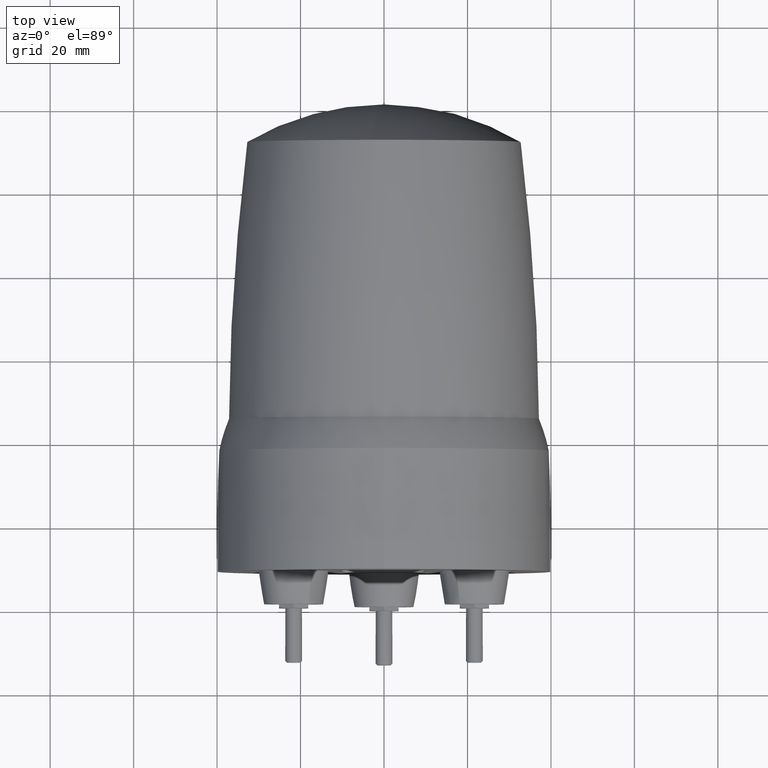
[diagram: clean part render]
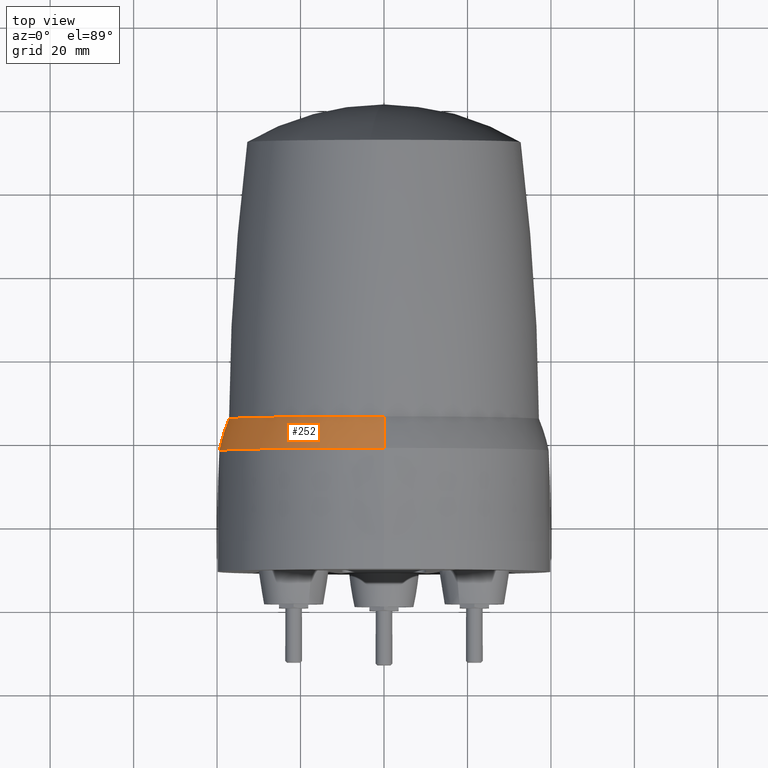
[diagram: same view with one face highlighted and labeled with its STEP entity id]
A machine part, top view. The second image highlights one B-rep face of the part: STEP entity #252.
In plain terms, the highlighted toroidal blend (fillet) surface has major radius 114.457 mm and minor (blend) radius 160 mm.
Its self-contained STEP definition (entity closure, byte-faithful):
#205 = EDGE_CURVE ( 'NONE', #2807, #688, #406, .T. ) ;
#247 = DIRECTION ( 'NONE',  ( 0.000000000000000000, 0.000000000000000000, 1.000000000000000000 ) ) ;
#252 = ADVANCED_FACE ( 'NONE', ( #2320 ), #3754, .T. ) ;
#406 = CIRCLE ( 'NONE', #4030, 160.0000010613769916 ) ;
#637 = EDGE_CURVE ( 'NONE', #1976, #1983, #3647, .T. ) ;
#688 = VERTEX_POINT ( 'NONE', #3676 ) ;
#885 = CARTESIAN_POINT ( 'NONE',  ( 0.000000000000000000, 37.99999999799999273, -39.61598857099999549 ) ) ;
#919 = DIRECTION ( 'NONE',  ( 0.000000000000000000, 0.000000000000000000, -1.000000000000000000 ) ) ;
#1100 = DIRECTION ( 'NONE',  ( 0.000000000000000000, 0.000000000000000000, 1.000000000000000000 ) ) ;
#1235 = ORIENTED_EDGE ( 'NONE', *, *, #2941, .T. ) ;
#1284 = AXIS2_PLACEMENT_3D ( 'NONE', #2097, #3037, #247 ) ;
#1396 = ORIENTED_EDGE ( 'NONE', *, *, #2426, .F. ) ;
#1431 = CARTESIAN_POINT ( 'NONE',  ( 4.875073278221368683E-15, 37.99999999799999273, 39.61598857099999549 ) ) ;
#1497 = DIRECTION ( 'NONE',  ( 1.000000000000000000, -0.000000000000000000, 0.000000000000000000 ) ) ;
#1521 = AXIS2_PLACEMENT_3D ( 'NONE', #2921, #1880, #1100 ) ;
#1665 = CIRCLE ( 'NONE', #1521, 39.61598857099999549 ) ;
#1767 = ORIENTED_EDGE ( 'NONE', *, *, #205, .T. ) ;
#1836 = CARTESIAN_POINT ( 'NONE',  ( 0.000000000000000000, -5.146295281195739868, 114.4567135640110109 ) ) ;
#1851 = EDGE_LOOP ( 'NONE', ( #1235, #1767, #1396, #2594 ) ) ;
#1866 = AXIS2_PLACEMENT_3D ( 'NONE', #1836, #1497, #2892 ) ;
#1880 = DIRECTION ( 'NONE',  ( 0.000000000000000000, 1.000000000000000000, 0.000000000000000000 ) ) ;
#1900 = DIRECTION ( 'NONE',  ( 0.000000000000000000, 1.000000000000000000, 0.000000000000000000 ) ) ;
#1976 = VERTEX_POINT ( 'NONE', #885 ) ;
#1983 = VERTEX_POINT ( 'NONE', #2310 ) ;
#2097 = CARTESIAN_POINT ( 'NONE',  ( 0.000000000000000000, 45.60319136799999740, 0.000000000000000000 ) ) ;
#2310 = CARTESIAN_POINT ( 'NONE',  ( 0.000000000000000000, 45.60319136799999740, -37.28151479199999585 ) ) ;
#2320 = FACE_OUTER_BOUND ( 'NONE', #1851, .T. ) ;
#2426 = EDGE_CURVE ( 'NONE', #1983, #688, #2693, .T. ) ;
#2575 = DIRECTION ( 'NONE',  ( -1.000000000000000000, 0.000000000000000000, -1.224646799147353207E-16 ) ) ;
#2594 = ORIENTED_EDGE ( 'NONE', *, *, #637, .F. ) ;
#2693 = CIRCLE ( 'NONE', #1284, 37.28151479199999585 ) ;
#2711 = CARTESIAN_POINT ( 'NONE',  ( 0.000000000000000000, -5.146295281195739868, 0.000000000000000000 ) ) ;
#2807 = VERTEX_POINT ( 'NONE', #1431 ) ;
#2892 = DIRECTION ( 'NONE',  ( 0.000000000000000000, 0.000000000000000000, -1.000000000000000000 ) ) ;
#2921 = CARTESIAN_POINT ( 'NONE',  ( 0.000000000000000000, 37.99999999799999273, 0.000000000000000000 ) ) ;
#2941 = EDGE_CURVE ( 'NONE', #1976, #2807, #1665, .T. ) ;
#3037 = DIRECTION ( 'NONE',  ( 0.000000000000000000, 1.000000000000000000, 0.000000000000000000 ) ) ;
#3647 = CIRCLE ( 'NONE', #1866, 160.0000010613769916 ) ;
#3676 = CARTESIAN_POINT ( 'NONE',  ( -4.708614067822110311E-15, 45.60319136799999740, 37.28151479199999585 ) ) ;
#3754 = TOROIDAL_SURFACE ( 'NONE', #3969, -114.4567135640110109, 160.0000010613769916 ) ;
#3969 = AXIS2_PLACEMENT_3D ( 'NONE', #2711, #1900, #919 ) ;
#4030 = AXIS2_PLACEMENT_3D ( 'NONE', #4342, #2575, #4473 ) ;
#4342 = CARTESIAN_POINT ( 'NONE',  ( 1.401690479070915299E-14, -5.146295281195739868, -114.4567135640110109 ) ) ;
#4473 = DIRECTION ( 'NONE',  ( -1.224646799147353207E-16, 0.000000000000000000, 1.000000000000000000 ) ) ;